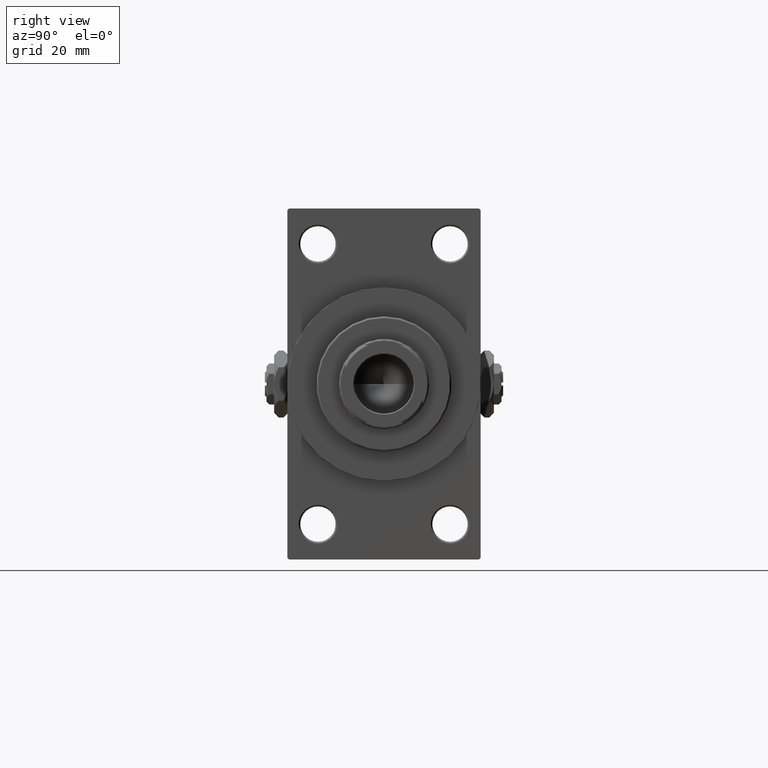
[diagram: clean part render]
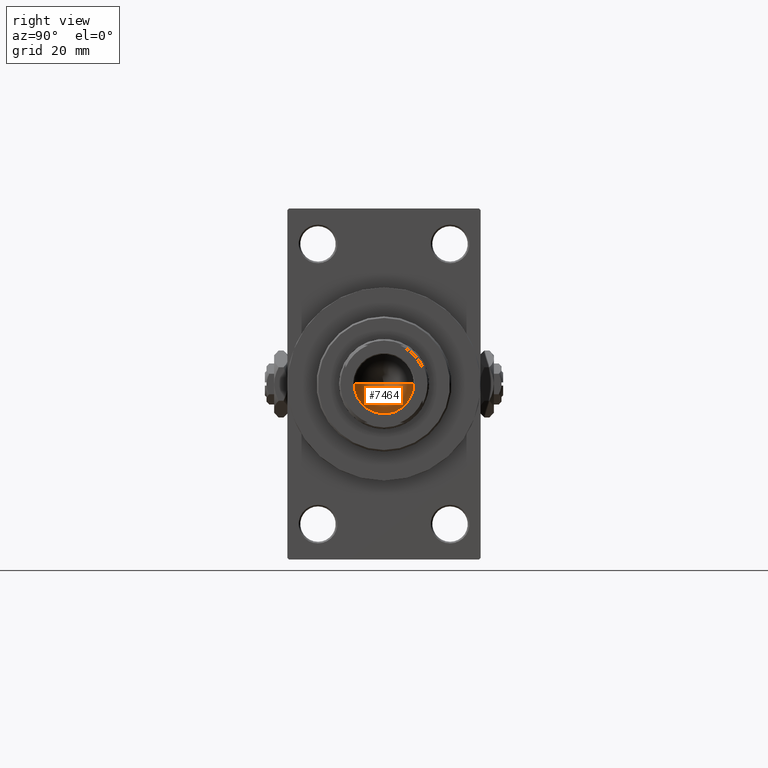
[diagram: same view with one face highlighted and labeled with its STEP entity id]
A machine part, right view. The second image highlights one B-rep face of the part: STEP entity #7464.
In plain terms, the highlighted conical surface has half-angle 59 deg.
Its self-contained STEP definition (entity closure, byte-faithful):
#738 = LINE ( 'NONE', #4661, #28632 ) ;
#4212 = CARTESIAN_POINT ( 'NONE',  ( 0.000000000000000000, 0.000000000000000000, 101.0000000000000000 ) ) ;
#4661 = CARTESIAN_POINT ( 'NONE',  ( -9.249999999999992895, 1.132798289211300712E-15, 101.0000000000000000 ) ) ;
#5243 = VERTEX_POINT ( 'NONE', #23508 ) ;
#6734 = DIRECTION ( 'NONE',  ( 1.000000000000000000, 0.000000000000000000, 0.000000000000000000 ) ) ;
#6975 = DIRECTION ( 'NONE',  ( -0.000000000000000000, -0.000000000000000000, 1.000000000000000000 ) ) ;
#7464 = ADVANCED_FACE ( 'NONE', ( #40498 ), #46728, .F. ) ;
#8022 = EDGE_CURVE ( 'NONE', #34318, #28513, #738, .T. ) ;
#9876 = AXIS2_PLACEMENT_3D ( 'NONE', #4212, #19736, #11867 ) ;
#10764 = EDGE_LOOP ( 'NONE', ( #21770, #21366, #13532 ) ) ;
#11453 = CIRCLE ( 'NONE', #9876, 9.249999999999992895 ) ;
#11644 = EDGE_CURVE ( 'NONE', #5243, #28513, #11453, .T. ) ;
#11867 = DIRECTION ( 'NONE',  ( 1.000000000000000000, 0.000000000000000000, 0.000000000000000000 ) ) ;
#13200 = CARTESIAN_POINT ( 'NONE',  ( -9.249999999999992895, 1.132798289211300712E-15, 101.0000000000000000 ) ) ;
#13532 = ORIENTED_EDGE ( 'NONE', *, *, #11644, .T. ) ;
#14376 = CARTESIAN_POINT ( 'NONE',  ( 0.000000000000000000, 0.000000000000000000, 101.0000000000000000 ) ) ;
#15246 = AXIS2_PLACEMENT_3D ( 'NONE', #14376, #6975, #6734 ) ;
#19736 = DIRECTION ( 'NONE',  ( -0.000000000000000000, -0.000000000000000000, 1.000000000000000000 ) ) ;
#21366 = ORIENTED_EDGE ( 'NONE', *, *, #43028, .T. ) ;
#21770 = ORIENTED_EDGE ( 'NONE', *, *, #8022, .F. ) ;
#23508 = CARTESIAN_POINT ( 'NONE',  ( 9.249999999999992895, 0.000000000000000000, 101.0000000000000000 ) ) ;
#28513 = VERTEX_POINT ( 'NONE', #13200 ) ;
#28632 = VECTOR ( 'NONE', #38191, 1000.000000000000000 ) ;
#29123 = VECTOR ( 'NONE', #38039, 1000.000000000000000 ) ;
#34110 = LINE ( 'NONE', #41741, #29123 ) ;
#34318 = VERTEX_POINT ( 'NONE', #36002 ) ;
#36002 = CARTESIAN_POINT ( 'NONE',  ( -9.769621978240258809E-15, 0.000000000000000000, 95.44203927399506426 ) ) ;
#38039 = DIRECTION ( 'NONE',  ( 0.8571673007021117785, 0.000000000000000000, 0.5150380749100550437 ) ) ;
#38191 = DIRECTION ( 'NONE',  ( -0.8571673007021117785, 1.049727191138617956E-16, 0.5150380749100550437 ) ) ;
#40498 = FACE_OUTER_BOUND ( 'NONE', #10764, .T. ) ;
#41741 = CARTESIAN_POINT ( 'NONE',  ( 9.249999999999992895, 0.000000000000000000, 101.0000000000000000 ) ) ;
#43028 = EDGE_CURVE ( 'NONE', #34318, #5243, #34110, .T. ) ;
#46728 = CONICAL_SURFACE ( 'NONE', #15246, 9.249999999999992895, 1.029744258676653423 ) ;